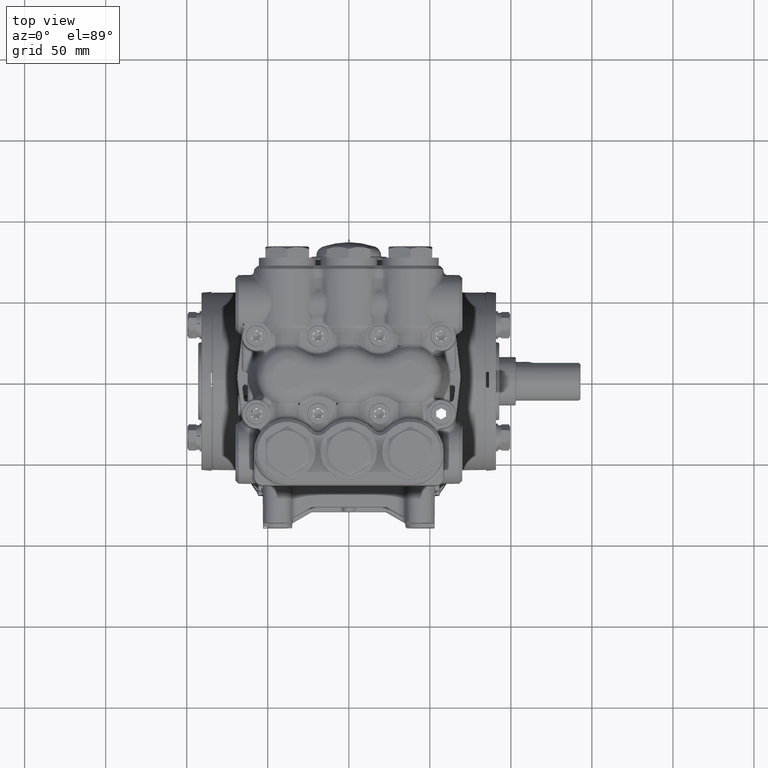
[diagram: clean part render]
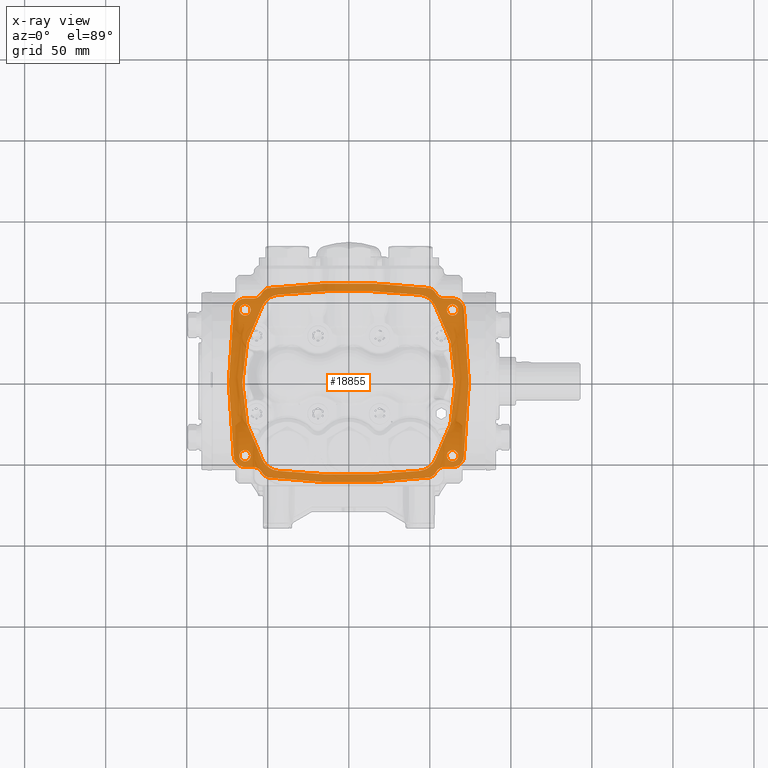
[diagram: x-ray — body ghosted, one internal face saturated and labeled with its STEP entity id]
A machine part, top view, then the same camera in x-ray: the body is ghosted and one INTERNAL B-rep face — a face not visible from any outside direction — is saturated and labeled: STEP entity #18855.
In plain terms, the highlighted planar face has unit normal (0, 0, 1).
Its self-contained STEP definition (entity closure, byte-faithful):
#327 = DIRECTION ( 'NONE',  ( 0.000000000000000000, 0.000000000000000000, 1.000000000000000000 ) ) ;
#591 = DIRECTION ( 'NONE',  ( 0.000000000000000000, 0.000000000000000000, 1.000000000000000000 ) ) ;
#661 = ORIENTED_EDGE ( 'NONE', *, *, #35545, .T. ) ;
#762 = EDGE_CURVE ( 'NONE', #31616, #80590, #42715, .T. ) ;
#945 = FACE_OUTER_BOUND ( 'NONE', #119704, .T. ) ;
#975 = VERTEX_POINT ( 'NONE', #20523 ) ;
#1279 = CARTESIAN_POINT ( 'NONE',  ( -2.390379968669624766, -1.775701195881771191E-15, -2.204724409448818534 ) ) ;
#1586 = VERTEX_POINT ( 'NONE', #52122 ) ;
#2205 = FACE_BOUND ( 'NONE', #65551, .T. ) ;
#2688 = VERTEX_POINT ( 'NONE', #46885 ) ;
#2864 = CIRCLE ( 'NONE', #73143, 0.2755905511811004294 ) ;
#3066 = DIRECTION ( 'NONE',  ( 0.06617949646860472879, -0.9978077341087118191, 0.000000000000000000 ) ) ;
#4001 = CARTESIAN_POINT ( 'NONE',  ( 2.105448202099413635, 1.855511626833944439, -2.204724409448818534 ) ) ;
#4003 = CIRCLE ( 'NONE', #60212, 0.1377952755905512972 ) ;
#4039 = ORIENTED_EDGE ( 'NONE', *, *, #31975, .T. ) ;
#4948 = CARTESIAN_POINT ( 'NONE',  ( 1.926447539938896503, -2.302985090464436446, -2.204724409448818534 ) ) ;
#4954 = CARTESIAN_POINT ( 'NONE',  ( 2.519685039370078705, 2.047244094488188892, -2.204724409448818534 ) ) ;
#5111 = CARTESIAN_POINT ( 'NONE',  ( -2.051083481286429588, 2.250180581757305731, -2.204724409448818534 ) ) ;
#5468 = DIRECTION ( 'NONE',  ( 0.1166157079181237149, -0.9931771124360221359, -0.000000000000000000 ) ) ;
#5473 = DIRECTION ( 'NONE',  ( 0.000000000000000000, 0.000000000000000000, 1.000000000000000000 ) ) ;
#5722 = EDGE_CURVE ( 'NONE', #50222, #88046, #98638, .T. ) ;
#5741 = CARTESIAN_POINT ( 'NONE',  ( -1.926447539938887177, 2.302985090464431561, -2.204724409448818534 ) ) ;
#5901 = CARTESIAN_POINT ( 'NONE',  ( 2.473811811613509271, -0.9774652049498783191, -2.204724409448818534 ) ) ;
#6343 = CARTESIAN_POINT ( 'NONE',  ( -1.964908401813795891, 2.295904897473645789, -2.204724409448818534 ) ) ;
#6465 = VECTOR ( 'NONE', #123300, 39.37007874015748143 ) ;
#6593 = LINE ( 'NONE', #73243, #10423 ) ;
#6999 = CARTESIAN_POINT ( 'NONE',  ( -2.912521781816622468, 0.01302745993476442377, -2.204724409448818534 ) ) ;
#7060 = CARTESIAN_POINT ( 'NONE',  ( 2.105457723328842956, 2.187922035967476031, -2.204724409448818534 ) ) ;
#7219 = EDGE_CURVE ( 'NONE', #30729, #31616, #32528, .T. ) ;
#7317 = CARTESIAN_POINT ( 'NONE',  ( 2.321998057958429840, 2.047244094488189781, -2.204724409448818534 ) ) ;
#7679 = VERTEX_POINT ( 'NONE', #59782 ) ;
#7815 = CARTESIAN_POINT ( 'NONE',  ( -2.794671422785861559, 1.789891987215757041, -2.204724409448818534 ) ) ;
#7860 = CARTESIAN_POINT ( 'NONE',  ( -1.992475042332175317, -2.285477522393467797, -2.204724409448818534 ) ) ;
#7894 = DIRECTION ( 'NONE',  ( -0.1166157079181237149, -0.9931771124360221359, -0.000000000000000000 ) ) ;
#8147 = DIRECTION ( 'NONE',  ( -1.000000000000000000, 0.000000000000000000, 0.000000000000000000 ) ) ;
#9101 = CARTESIAN_POINT ( 'NONE',  ( -2.065760577730856973, -2.237214070029445612, -2.204724409448818534 ) ) ;
#9177 = CARTESIAN_POINT ( 'NONE',  ( 2.473811811613508826, 0.9774652049498786521, -2.204724409448818534 ) ) ;
#9187 = DIRECTION ( 'NONE',  ( 0.1166157079181242145, -0.9931771124360219138, -0.000000000000000000 ) ) ;
#9229 = AXIS2_PLACEMENT_3D ( 'NONE', #85188, #105263, #10374 ) ;
#9326 = DIRECTION ( 'NONE',  ( -1.000000000000000000, 0.000000000000000000, 0.000000000000000000 ) ) ;
#9882 = ORIENTED_EDGE ( 'NONE', *, *, #111271, .T. ) ;
#9983 = CARTESIAN_POINT ( 'NONE',  ( -2.321998057958429840, 2.047244094488189781, -2.204724409448818534 ) ) ;
#10021 = VECTOR ( 'NONE', #123298, 39.37007874015748143 ) ;
#10264 = DIRECTION ( 'NONE',  ( -0.000000000000000000, -0.000000000000000000, -1.000000000000000000 ) ) ;
#10374 = DIRECTION ( 'NONE',  ( -1.000000000000000000, 0.000000000000000000, 0.000000000000000000 ) ) ;
#10423 = VECTOR ( 'NONE', #102750, 39.37007874015748143 ) ;
#10852 = CARTESIAN_POINT ( 'NONE',  ( 2.459168558816799521, -1.032215675239878339, -2.204724409448818534 ) ) ;
#11643 = FACE_BOUND ( 'NONE', #70121, .T. ) ;
#12417 = VERTEX_POINT ( 'NONE', #20226 ) ;
#12472 = DIRECTION ( 'NONE',  ( 1.000000000000000000, 0.000000000000000000, 0.000000000000000000 ) ) ;
#12632 = CARTESIAN_POINT ( 'NONE',  ( -2.278304506015867315, 0.9545093569344998974, -2.204724409448818534 ) ) ;
#12673 = DIRECTION ( 'NONE',  ( 0.000000000000000000, 0.000000000000000000, 1.000000000000000000 ) ) ;
#12870 = DIRECTION ( 'NONE',  ( 0.000000000000000000, 0.000000000000000000, 1.000000000000000000 ) ) ;
#13454 = EDGE_CURVE ( 'NONE', #2688, #30729, #29511, .T. ) ;
#13951 = CARTESIAN_POINT ( 'NONE',  ( -2.519685039370078705, -1.771653543307086576, -2.204724409448818534 ) ) ;
#14247 = CARTESIAN_POINT ( 'NONE',  ( -1.671374475377180868, -1.669016462901027786, -2.204724409448818534 ) ) ;
#14327 = EDGE_CURVE ( 'NONE', #91890, #57428, #72215, .T. ) ;
#14398 = CIRCLE ( 'NONE', #100716, 0.2755905511811004294 ) ;
#15005 = CARTESIAN_POINT ( 'NONE',  ( 1.937045517337301348, -2.301678835490549080, -2.204724409448818534 ) ) ;
#15161 = CARTESIAN_POINT ( 'NONE',  ( -1.992415732329600564, 2.285503073206394120, -2.204724409448818534 ) ) ;
#15872 = CARTESIAN_POINT ( 'NONE',  ( 2.059547584133961440, 2.243002979593314183, -2.204724409448818534 ) ) ;
#16229 = CARTESIAN_POINT ( 'NONE',  ( 1.968014526851309398, -2.294399713230200977, -2.204724409448818534 ) ) ;
#16490 = ORIENTED_EDGE ( 'NONE', *, *, #120437, .F. ) ;
#16512 = CIRCLE ( 'NONE', #86760, 0.1968503937007873017 ) ;
#16627 = DIRECTION ( 'NONE',  ( 1.000000000000000000, 0.000000000000000000, 0.000000000000000000 ) ) ;
#16962 = CIRCLE ( 'NONE', #103281, 0.2755905511811001518 ) ;
#17136 = LINE ( 'NONE', #46108, #87060 ) ;
#17374 = VERTEX_POINT ( 'NONE', #28298 ) ;
#17586 = CARTESIAN_POINT ( 'NONE',  ( 0.000000000000000000, 13.33661417322834630, -2.204724409448818534 ) ) ;
#17801 = VERTEX_POINT ( 'NONE', #114064 ) ;
#17902 = CARTESIAN_POINT ( 'NONE',  ( -1.964960090557481998, -2.295893926700739218, -2.204724409448819422 ) ) ;
#18226 = DIRECTION ( 'NONE',  ( -0.000000000000000000, -0.000000000000000000, -1.000000000000000000 ) ) ;
#18402 = CIRCLE ( 'NONE', #86593, 0.1377952755905512972 ) ;
#18526 = CARTESIAN_POINT ( 'NONE',  ( -2.107767962821018859, -2.183458564327182660, -2.204724409448819422 ) ) ;
#18855 = ADVANCED_FACE ( 'NONE', ( #29870, #945, #39957, #11643, #2205, #39320 ), #20434, .T. ) ;
#19736 = ORIENTED_EDGE ( 'NONE', *, *, #106312, .F. ) ;
#20226 = CARTESIAN_POINT ( 'NONE',  ( -2.459168558816799077, 1.032215675239877894, -2.204724409448818534 ) ) ;
#20287 = CARTESIAN_POINT ( 'NONE',  ( -2.321997991476540513, -2.283464566929134243, -2.204724409448818534 ) ) ;
#20434 = PLANE ( 'NONE',  #33615 ) ;
#20523 = CARTESIAN_POINT ( 'NONE',  ( -2.519685039370078705, -2.047244094488188892, -2.204724409448818534 ) ) ;
#20546 = CIRCLE ( 'NONE', #116872, 15.74803149606299257 ) ;
#20751 = EDGE_CURVE ( 'NONE', #72598, #30251, #71346, .T. ) ;
#20769 = DIRECTION ( 'NONE',  ( -1.000000000000000000, 0.000000000000000000, 0.000000000000000000 ) ) ;
#21065 = AXIS2_PLACEMENT_3D ( 'NONE', #13951, #33449, #41029 ) ;
#21236 = ORIENTED_EDGE ( 'NONE', *, *, #14327, .F. ) ;
#21807 = CARTESIAN_POINT ( 'NONE',  ( 2.105448202099417632, -1.855511626833935113, -2.204724409448818534 ) ) ;
#22349 = DIRECTION ( 'NONE',  ( -1.000000000000000000, 0.000000000000000000, 0.000000000000000000 ) ) ;
#22556 = AXIS2_PLACEMENT_3D ( 'NONE', #90802, #83223, #23569 ) ;
#23198 = CARTESIAN_POINT ( 'NONE',  ( 1.947548091809941040, -2.299678879626897654, -2.204724409448818534 ) ) ;
#23349 = CARTESIAN_POINT ( 'NONE',  ( -1.945975374407536540, 2.300576478307742256, -2.204724409448818534 ) ) ;
#23396 = VECTOR ( 'NONE', #102049, 39.37007874015748854 ) ;
#23569 = DIRECTION ( 'NONE',  ( -1.000000000000000000, 0.000000000000000000, 0.000000000000000000 ) ) ;
#23859 = VERTEX_POINT ( 'NONE', #47215 ) ;
#24443 = VERTEX_POINT ( 'NONE', #10852 ) ;
#24936 = CARTESIAN_POINT ( 'NONE',  ( -2.519685039370078705, -1.771653543307086576, -2.204724409448818534 ) ) ;
#25317 = CARTESIAN_POINT ( 'NONE',  ( 2.051508867286556459, 2.249868563675855526, -2.204724409448818534 ) ) ;
#25458 = DIRECTION ( 'NONE',  ( 0.000000000000000000, 0.000000000000000000, 1.000000000000000000 ) ) ;
#25780 = CARTESIAN_POINT ( 'NONE',  ( 0.000000000000000000, -13.32677165354330917, -2.204724409448818534 ) ) ;
#25926 = CARTESIAN_POINT ( 'NONE',  ( 2.081921949870710442, 2.220154571673986776, -2.204724409448818534 ) ) ;
#26065 = ORIENTED_EDGE ( 'NONE', *, *, #123177, .T. ) ;
#26449 = EDGE_CURVE ( 'NONE', #90150, #97087, #4003, .T. ) ;
#26486 = CARTESIAN_POINT ( 'NONE',  ( 1.926447539938896503, -2.302985090464436446, -2.204724409448818534 ) ) ;
#26710 = CARTESIAN_POINT ( 'NONE',  ( -2.043295570711283204, -2.256254348243912133, -2.204724409448818534 ) ) ;
#26790 = AXIS2_PLACEMENT_3D ( 'NONE', #41653, #71765, #62348 ) ;
#26887 = VERTEX_POINT ( 'NONE', #56458 ) ;
#27041 = CARTESIAN_POINT ( 'NONE',  ( 2.519685039370078705, -1.771653543307086576, -2.204724409448818534 ) ) ;
#27071 = AXIS2_PLACEMENT_3D ( 'NONE', #60664, #98956, #42427 ) ;
#27519 = CARTESIAN_POINT ( 'NONE',  ( 2.105448202099417632, -1.855511626833935335, -2.204724409448818534 ) ) ;
#27787 = CARTESIAN_POINT ( 'NONE',  ( -2.459168558816799077, 1.032215675239877894, -2.204724409448818534 ) ) ;
#28188 = DIRECTION ( 'NONE',  ( -0.000000000000000000, -0.000000000000000000, -1.000000000000000000 ) ) ;
#28245 = CARTESIAN_POINT ( 'NONE',  ( 2.390379968669624766, -1.775701195881771191E-15, -2.204724409448818534 ) ) ;
#28281 = CARTESIAN_POINT ( 'NONE',  ( -2.519685039370078705, 1.771653543307086576, -2.204724409448818534 ) ) ;
#28298 = CARTESIAN_POINT ( 'NONE',  ( -2.473811811613508826, 0.9774652049498786521, -2.204724409448818534 ) ) ;
#29288 = VERTEX_POINT ( 'NONE', #62447 ) ;
#29434 = EDGE_CURVE ( 'NONE', #58270, #105550, #75569, .T. ) ;
#29511 = LINE ( 'NONE', #49008, #117558 ) ;
#29674 = CARTESIAN_POINT ( 'NONE',  ( 8.058951581309577185E-15, -13.33661417322834630, -2.204724409448818534 ) ) ;
#29821 = CIRCLE ( 'NONE', #92014, 0.2362204724409448231 ) ;
#29870 = FACE_BOUND ( 'NONE', #80516, .T. ) ;
#30213 = CARTESIAN_POINT ( 'NONE',  ( 2.519685039370078705, 1.771653543307086576, -2.204724409448818534 ) ) ;
#30251 = VERTEX_POINT ( 'NONE', #26486 ) ;
#30362 = AXIS2_PLACEMENT_3D ( 'NONE', #47694, #124314, #86017 ) ;
#30458 = CARTESIAN_POINT ( 'NONE',  ( -1.926447539938887177, 2.302985090464431561, -2.204724409448818534 ) ) ;
#30535 = CARTESIAN_POINT ( 'NONE',  ( 2.112247612431775057, 2.174813668470048533, -2.204724409448818534 ) ) ;
#30670 = VERTEX_POINT ( 'NONE', #102416 ) ;
#30729 = VERTEX_POINT ( 'NONE', #116134 ) ;
#30778 = VERTEX_POINT ( 'NONE', #9983 ) ;
#31034 = CIRCLE ( 'NONE', #55095, 0.4724409448818900348 ) ;
#31116 = CARTESIAN_POINT ( 'NONE',  ( 2.244094488188975944, 0.9448818897637796255, -2.204724409448818534 ) ) ;
#31169 = CIRCLE ( 'NONE', #111430, 0.1968503937007875793 ) ;
#31181 = ORIENTED_EDGE ( 'NONE', *, *, #106393, .T. ) ;
#31214 = AXIS2_PLACEMENT_3D ( 'NONE', #20287, #10264, #117653 ) ;
#31249 = ORIENTED_EDGE ( 'NONE', *, *, #26449, .T. ) ;
#31357 = VERTEX_POINT ( 'NONE', #7815 ) ;
#31616 = VERTEX_POINT ( 'NONE', #61187 ) ;
#31902 = CIRCLE ( 'NONE', #50053, 15.57086614173228156 ) ;
#31975 = EDGE_CURVE ( 'NONE', #122387, #83297, #38540, .T. ) ;
#31994 = AXIS2_PLACEMENT_3D ( 'NONE', #105467, #28188, #9326 ) ;
#32052 = ORIENTED_EDGE ( 'NONE', *, *, #110568, .T. ) ;
#32082 = AXIS2_PLACEMENT_3D ( 'NONE', #87827, #96616, #67111 ) ;
#32108 = DIRECTION ( 'NONE',  ( -0.06617949646860472879, -0.9978077341087118191, 0.000000000000000000 ) ) ;
#32313 = VECTOR ( 'NONE', #32108, 39.37007874015748854 ) ;
#32439 = EDGE_CURVE ( 'NONE', #30670, #31357, #14398, .T. ) ;
#32528 = CIRCLE ( 'NONE', #22556, 0.1968503937007875793 ) ;
#32639 = CARTESIAN_POINT ( 'NONE',  ( 2.097493531556696489, -2.200271988601399276, -2.204724409448818534 ) ) ;
#32919 = CARTESIAN_POINT ( 'NONE',  ( 1.671374475377177315, 1.669016462901036890, -2.204724409448818534 ) ) ;
#33072 = B_SPLINE_CURVE_WITH_KNOTS ( 'NONE', 3,
 ( #5741, #23349, #6343, #15161, #101890, #33421, #64182, #44727, #5111, #93042, #71123, #120717, #72985, #63574, #34652, #119468 ),
 .UNSPECIFIED., .F., .F.,
 ( 4, 2, 2, 2, 2, 2, 2, 4 ),
 ( 0.000000000000000000, 0.2310239325060028381, 0.3465358987590042572, 0.4620478650120056763, 0.5775598312650070953, 0.6930717975180085144, 0.8085837637710099335, 0.9240957300240113526 ),
 .UNSPECIFIED. ) ;
#33353 = CARTESIAN_POINT ( 'NONE',  ( -1.671374475377177315, 1.669016462901036890, -2.204724409448818534 ) ) ;
#33421 = CARTESIAN_POINT ( 'NONE',  ( -2.018758174713479292, 2.272416613734317359, -2.204724409448818534 ) ) ;
#33426 = EDGE_CURVE ( 'NONE', #97202, #58270, #100893, .T. ) ;
#33449 = DIRECTION ( 'NONE',  ( 0.000000000000000000, 0.000000000000000000, 1.000000000000000000 ) ) ;
#33524 = CARTESIAN_POINT ( 'NONE',  ( 1.926447539938887177, 2.302985090464431561, -2.204724409448818534 ) ) ;
#33615 = AXIS2_PLACEMENT_3D ( 'NONE', #31116, #12870, #108397 ) ;
#34553 = VERTEX_POINT ( 'NONE', #121955 ) ;
#34652 = CARTESIAN_POINT ( 'NONE',  ( -2.107770823159133666, 2.183455536036899236, -2.204724409448818978 ) ) ;
#35147 = VERTEX_POINT ( 'NONE', #89509 ) ;
#35248 = EDGE_CURVE ( 'NONE', #84807, #23859, #17136, .T. ) ;
#35545 = EDGE_CURVE ( 'NONE', #24443, #35597, #75925, .T. ) ;
#35597 = VERTEX_POINT ( 'NONE', #21807 ) ;
#35827 = EDGE_CURVE ( 'NONE', #17374, #83064, #64494, .T. ) ;
#36785 = VERTEX_POINT ( 'NONE', #60671 ) ;
#36844 = LINE ( 'NONE', #104093, #69234 ) ;
#37262 = AXIS2_PLACEMENT_3D ( 'NONE', #116656, #78982, #99061 ) ;
#37861 = ORIENTED_EDGE ( 'NONE', *, *, #76370, .F. ) ;
#38013 = CARTESIAN_POINT ( 'NONE',  ( -1.926447539938896503, -2.302985090464436446, -2.204724409448818534 ) ) ;
#38540 = CIRCLE ( 'NONE', #46563, 0.1968503937007875793 ) ;
#39019 = ORIENTED_EDGE ( 'NONE', *, *, #46772, .T. ) ;
#39097 = EDGE_CURVE ( 'NONE', #35147, #975, #16962, .T. ) ;
#39205 = CARTESIAN_POINT ( 'NONE',  ( -2.585887274267266722, 0.02295584801537671818, -2.204724409448818534 ) ) ;
#39320 = FACE_BOUND ( 'NONE', #65886, .T. ) ;
#39957 = FACE_BOUND ( 'NONE', #87239, .T. ) ;
#40063 = CARTESIAN_POINT ( 'NONE',  ( 2.459168558816799077, 1.032215675239877894, -2.204724409448818534 ) ) ;
#40220 = EDGE_CURVE ( 'NONE', #107982, #91890, #107396, .T. ) ;
#40616 = DIRECTION ( 'NONE',  ( -0.000000000000000000, 0.000000000000000000, 1.000000000000000000 ) ) ;
#40961 = ORIENTED_EDGE ( 'NONE', *, *, #65753, .T. ) ;
#41029 = DIRECTION ( 'NONE',  ( 1.000000000000000000, 0.000000000000000000, 0.000000000000000000 ) ) ;
#41653 = CARTESIAN_POINT ( 'NONE',  ( 2.519685039370078705, 1.771653543307086576, -2.204724409448818534 ) ) ;
#41738 = ORIENTED_EDGE ( 'NONE', *, *, #111003, .F. ) ;
#42427 = DIRECTION ( 'NONE',  ( 1.000000000000000000, 0.000000000000000000, 0.000000000000000000 ) ) ;
#42715 = LINE ( 'NONE', #91684, #104225 ) ;
#43117 = AXIS2_PLACEMENT_3D ( 'NONE', #33353, #104290, #113060 ) ;
#43199 = DIRECTION ( 'NONE',  ( 1.000000000000000000, 0.000000000000000000, 0.000000000000000000 ) ) ;
#43910 = DIRECTION ( 'NONE',  ( -1.000000000000000000, 0.000000000000000000, 0.000000000000000000 ) ) ;
#44184 = ORIENTED_EDGE ( 'NONE', *, *, #108001, .T. ) ;
#44727 = CARTESIAN_POINT ( 'NONE',  ( -2.043278375530899638, 2.256267245084980999, -2.204724409448818534 ) ) ;
#44830 = CARTESIAN_POINT ( 'NONE',  ( 2.097499843759911720, 2.200257817618235467, -2.204724409448818534 ) ) ;
#45831 = VERTEX_POINT ( 'NONE', #53607 ) ;
#46069 = CARTESIAN_POINT ( 'NONE',  ( 2.034625601224818503, 2.262492316435812167, -2.204724409448818534 ) ) ;
#46085 = DIRECTION ( 'NONE',  ( 0.000000000000000000, 0.000000000000000000, 1.000000000000000000 ) ) ;
#46108 = CARTESIAN_POINT ( 'NONE',  ( 2.519685039370078705, -2.047244094488188892, -2.204724409448818534 ) ) ;
#46396 = ORIENTED_EDGE ( 'NONE', *, *, #61235, .T. ) ;
#46563 = AXIS2_PLACEMENT_3D ( 'NONE', #121579, #25458, #16627 ) ;
#46772 = EDGE_CURVE ( 'NONE', #83297, #35147, #97569, .T. ) ;
#46885 = CARTESIAN_POINT ( 'NONE',  ( 2.794671422785861559, 1.789891987215757041, -2.204724409448818534 ) ) ;
#47215 = CARTESIAN_POINT ( 'NONE',  ( 2.321997991476540513, -2.047244094488189337, -2.204724409448818534 ) ) ;
#47238 = ORIENTED_EDGE ( 'NONE', *, *, #13454, .F. ) ;
#47375 = ORIENTED_EDGE ( 'NONE', *, *, #86011, .F. ) ;
#47464 = CARTESIAN_POINT ( 'NONE',  ( -1.946008139956907801, -2.300572404468032683, -2.204724409448819422 ) ) ;
#47694 = CARTESIAN_POINT ( 'NONE',  ( -2.519685039370078705, -1.771653543307086576, -2.204724409448818534 ) ) ;
#48060 = CARTESIAN_POINT ( 'NONE',  ( -2.105448202099417632, -1.855511626833935113, -2.204724409448818534 ) ) ;
#48080 = CARTESIAN_POINT ( 'NONE',  ( -2.112248776625020419, -2.174810582275452209, -2.204724409448818534 ) ) ;
#48593 = DIRECTION ( 'NONE',  ( 0.06617949646860503410, -0.9978077341087118191, 0.000000000000000000 ) ) ;
#48781 = LINE ( 'NONE', #107166, #95557 ) ;
#49008 = CARTESIAN_POINT ( 'NONE',  ( 2.794671422785861559, 1.789891987215757041, -2.204724409448818534 ) ) ;
#49217 = CARTESIAN_POINT ( 'NONE',  ( -2.913385826771653697, 0.000000000000000000, -2.204724409448818534 ) ) ;
#50053 = AXIS2_PLACEMENT_3D ( 'NONE', #17586, #124389, #55975 ) ;
#50060 = DIRECTION ( 'NONE',  ( -1.000000000000000000, 0.000000000000000000, 0.000000000000000000 ) ) ;
#50222 = VERTEX_POINT ( 'NONE', #91286 ) ;
#50841 = DIRECTION ( 'NONE',  ( 0.000000000000000000, 0.000000000000000000, 1.000000000000000000 ) ) ;
#51015 = DIRECTION ( 'NONE',  ( 0.000000000000000000, 0.000000000000000000, 1.000000000000000000 ) ) ;
#51085 = CARTESIAN_POINT ( 'NONE',  ( -2.585887274267266722, -0.02295584801538049641, -2.204724409448818534 ) ) ;
#51431 = EDGE_CURVE ( 'NONE', #17801, #51609, #31169, .T. ) ;
#51609 = VERTEX_POINT ( 'NONE', #102892 ) ;
#52030 = VERTEX_POINT ( 'NONE', #113409 ) ;
#52122 = CARTESIAN_POINT ( 'NONE',  ( 2.381889763779527769, 1.771653543307086576, -2.204724409448818534 ) ) ;
#52392 = ORIENTED_EDGE ( 'NONE', *, *, #122986, .T. ) ;
#52504 = LINE ( 'NONE', #98986, #65174 ) ;
#52748 = CARTESIAN_POINT ( 'NONE',  ( 2.026201338119044681, -2.268792589333220366, -2.204724409448818534 ) ) ;
#53070 = LINE ( 'NONE', #5901, #23396 ) ;
#53607 = CARTESIAN_POINT ( 'NONE',  ( -2.321997991476540513, -2.047244094488189337, -2.204724409448818534 ) ) ;
#53621 = VERTEX_POINT ( 'NONE', #73766 ) ;
#53858 = DIRECTION ( 'NONE',  ( -0.000000000000000000, 0.000000000000000000, 1.000000000000000000 ) ) ;
#54178 = CARTESIAN_POINT ( 'NONE',  ( 2.657480314960630086, -1.771653543307086576, -2.204724409448818534 ) ) ;
#54601 = DIRECTION ( 'NONE',  ( -0.06617949646860503410, -0.9978077341087118191, 0.000000000000000000 ) ) ;
#54664 = EDGE_CURVE ( 'NONE', #80590, #84807, #103916, .T. ) ;
#54855 = CARTESIAN_POINT ( 'NONE',  ( 2.459168558816799077, 1.032215675239877894, -2.204724409448818534 ) ) ;
#55031 = CARTESIAN_POINT ( 'NONE',  ( -2.085606465693309985, -2.215695956575089998, -2.204724409448818534 ) ) ;
#55055 = VECTOR ( 'NONE', #85345, 39.37007874015747433 ) ;
#55095 = AXIS2_PLACEMENT_3D ( 'NONE', #14247, #101591, #43199 ) ;
#55551 = ORIENTED_EDGE ( 'NONE', *, *, #7219, .F. ) ;
#55975 = DIRECTION ( 'NONE',  ( 1.000000000000000000, 0.000000000000000000, 0.000000000000000000 ) ) ;
#56395 = CIRCLE ( 'NONE', #64363, 0.1377952755905512972 ) ;
#56458 = CARTESIAN_POINT ( 'NONE',  ( -2.112247612431775057, 2.174813668470048533, -2.204724409448818534 ) ) ;
#56541 = CARTESIAN_POINT ( 'NONE',  ( 2.519685039370078705, -1.771653543307086576, -2.204724409448818534 ) ) ;
#56605 = DIRECTION ( 'NONE',  ( -1.000000000000000000, 0.000000000000000000, 0.000000000000000000 ) ) ;
#56898 = CARTESIAN_POINT ( 'NONE',  ( -2.072662015751376430, -2.230320140195582557, -2.204724409448818090 ) ) ;
#57428 = VERTEX_POINT ( 'NONE', #97505 ) ;
#58270 = VERTEX_POINT ( 'NONE', #4001 ) ;
#58391 = B_SPLINE_CURVE_WITH_KNOTS ( 'NONE', 3,
 ( #48080, #18526, #86403, #122231, #55031, #56898, #9101, #112786, #26710, #122855, #95822, #104015, #7860, #17902, #47464, #38013 ),
 .UNSPECIFIED., .F., .F.,
 ( 4, 2, 2, 2, 2, 2, 2, 4 ),
 ( 0.07585387448540915900, 0.1913721401747325024, 0.3068904058640558596, 0.4224086715533791891, 0.5379269372427025742, 0.6534452029320259037, 0.7689634686213492332, 1.000000000000000000 ),
 .UNSPECIFIED. ) ;
#59218 = CIRCLE ( 'NONE', #27071, 0.2362204724409459056 ) ;
#59420 = CARTESIAN_POINT ( 'NONE',  ( -2.278304506015867759, -0.9545093569344998974, -2.204724409448818534 ) ) ;
#59782 = CARTESIAN_POINT ( 'NONE',  ( -2.473811811613509271, -0.9774652049498783191, -2.204724409448818534 ) ) ;
#59853 = ORIENTED_EDGE ( 'NONE', *, *, #81947, .T. ) ;
#60089 = CIRCLE ( 'NONE', #31994, 0.1968503937007873017 ) ;
#60212 = AXIS2_PLACEMENT_3D ( 'NONE', #27041, #18226, #56605 ) ;
#60664 = CARTESIAN_POINT ( 'NONE',  ( -2.321998057958429840, 2.283464566929136463, -2.204724409448818534 ) ) ;
#60671 = CARTESIAN_POINT ( 'NONE',  ( 1.723673024802287124, -2.138553797017198832, -2.204724409448818534 ) ) ;
#61187 = CARTESIAN_POINT ( 'NONE',  ( 2.912521781816622468, -0.01302745993476477245, -2.204724409448818534 ) ) ;
#61231 = CIRCLE ( 'NONE', #43117, 0.4724409448818899238 ) ;
#61235 = EDGE_CURVE ( 'NONE', #52030, #1586, #87007, .T. ) ;
#61514 = DIRECTION ( 'NONE',  ( -0.000000000000000000, -0.000000000000000000, -1.000000000000000000 ) ) ;
#61861 = EDGE_CURVE ( 'NONE', #7679, #111432, #77057, .T. ) ;
#62181 = CARTESIAN_POINT ( 'NONE',  ( 2.081860479042987322, -2.220228688266633110, -2.204724409448818534 ) ) ;
#62253 = ORIENTED_EDGE ( 'NONE', *, *, #96620, .T. ) ;
#62348 = DIRECTION ( 'NONE',  ( -1.000000000000000000, 0.000000000000000000, 0.000000000000000000 ) ) ;
#62447 = CARTESIAN_POINT ( 'NONE',  ( 2.473811811613509271, -0.9774652049498783191, -2.204724409448818534 ) ) ;
#63347 = CARTESIAN_POINT ( 'NONE',  ( -2.381889763779527769, 1.771653543307086576, -2.204724409448818534 ) ) ;
#63574 = CARTESIAN_POINT ( 'NONE',  ( -2.102768252731171739, 2.191798822278780534, -2.204724409448818534 ) ) ;
#64182 = CARTESIAN_POINT ( 'NONE',  ( -2.027127973212099032, 2.267376066214193298, -2.204724409448818534 ) ) ;
#64284 = ORIENTED_EDGE ( 'NONE', *, *, #20751, .F. ) ;
#64363 = AXIS2_PLACEMENT_3D ( 'NONE', #56541, #94839, #50060 ) ;
#64494 = LINE ( 'NONE', #75781, #111174 ) ;
#65020 = ORIENTED_EDGE ( 'NONE', *, *, #111074, .F. ) ;
#65174 = VECTOR ( 'NONE', #90794, 39.37007874015748143 ) ;
#65551 = EDGE_LOOP ( 'NONE', ( #101374, #46396 ) ) ;
#65753 = EDGE_CURVE ( 'NONE', #65843, #17801, #36844, .T. ) ;
#65843 = VERTEX_POINT ( 'NONE', #9177 ) ;
#65886 = EDGE_LOOP ( 'NONE', ( #44184, #31249 ) ) ;
#65965 = DIRECTION ( 'NONE',  ( 0.3947480969913208515, -0.9187893882287337943, -0.000000000000000000 ) ) ;
#66749 = LINE ( 'NONE', #27787, #6465 ) ;
#66785 = CARTESIAN_POINT ( 'NONE',  ( -1.723673024802278686, 2.138553797017210378, -2.204724409448818534 ) ) ;
#67111 = DIRECTION ( 'NONE',  ( -1.000000000000000000, 0.000000000000000000, 0.000000000000000000 ) ) ;
#67586 = DIRECTION ( 'NONE',  ( 1.000000000000000000, 0.000000000000000000, 0.000000000000000000 ) ) ;
#67813 = ORIENTED_EDGE ( 'NONE', *, *, #101294, .F. ) ;
#68351 = VECTOR ( 'NONE', #65965, 39.37007874015747433 ) ;
#69183 = CARTESIAN_POINT ( 'NONE',  ( -2.794671422785861559, 1.789891987215757041, -2.204724409448818534 ) ) ;
#69219 = DIRECTION ( 'NONE',  ( 1.000000000000000000, 0.000000000000000000, 0.000000000000000000 ) ) ;
#69234 = VECTOR ( 'NONE', #5468, 39.37007874015748143 ) ;
#69821 = LINE ( 'NONE', #69183, #32313 ) ;
#70121 = EDGE_LOOP ( 'NONE', ( #87746, #94181 ) ) ;
#70164 = CARTESIAN_POINT ( 'NONE',  ( 1.723673024802278686, 2.138553797017210378, -2.204724409448818534 ) ) ;
#70974 = CARTESIAN_POINT ( 'NONE',  ( 2.059529357906648706, -2.243015741114176009, -2.204724409448818534 ) ) ;
#71123 = CARTESIAN_POINT ( 'NONE',  ( -2.072663015178310086, 2.230318786648426421, -2.204724409448818534 ) ) ;
#71346 = B_SPLINE_CURVE_WITH_KNOTS ( 'NONE', 3,
 ( #92294, #102342, #32639, #62181, #109266, #70974, #100493, #52748, #111119, #120556, #16229, #23198, #15005, #4948 ),
 .UNSPECIFIED., .F., .F.,
 ( 4, 2, 2, 2, 2, 2, 4 ),
 ( 0.07546029968613417183, 0.2500000000000101030, 0.3750000000000086597, 0.5000000000000073275, 0.7500000000000044409, 0.8750000000000023315, 1.000000000000000000 ),
 .UNSPECIFIED. ) ;
#71765 = DIRECTION ( 'NONE',  ( -0.000000000000000000, -0.000000000000000000, -1.000000000000000000 ) ) ;
#71785 = EDGE_CURVE ( 'NONE', #23859, #72598, #29821, .T. ) ;
#71807 = ORIENTED_EDGE ( 'NONE', *, *, #29434, .T. ) ;
#71852 = CARTESIAN_POINT ( 'NONE',  ( 1.947672725584202791, 2.300368977664926096, -2.204724409448818534 ) ) ;
#72215 = LINE ( 'NONE', #4954, #123675 ) ;
#72598 = VERTEX_POINT ( 'NONE', #120746 ) ;
#72985 = CARTESIAN_POINT ( 'NONE',  ( -2.091710964925278304, 2.207887929263833815, -2.204724409448818534 ) ) ;
#73007 = ORIENTED_EDGE ( 'NONE', *, *, #61861, .F. ) ;
#73143 = AXIS2_PLACEMENT_3D ( 'NONE', #30213, #106245, #20769 ) ;
#73243 = CARTESIAN_POINT ( 'NONE',  ( -2.519685039370078705, -2.047244094488188892, -2.204724409448818534 ) ) ;
#73656 = CARTESIAN_POINT ( 'NONE',  ( 1.926447539938887177, 2.302985090464431561, -2.204724409448818534 ) ) ;
#73766 = CARTESIAN_POINT ( 'NONE',  ( -1.926447539938896503, -2.302985090464436446, -2.204724409448818534 ) ) ;
#73787 = AXIS2_PLACEMENT_3D ( 'NONE', #109449, #118862, #100045 ) ;
#74524 = AXIS2_PLACEMENT_3D ( 'NONE', #29674, #12673, #117599 ) ;
#75447 = DIRECTION ( 'NONE',  ( 1.000000000000000000, 0.000000000000000000, 0.000000000000000000 ) ) ;
#75569 = LINE ( 'NONE', #54855, #10021 ) ;
#75583 = EDGE_CURVE ( 'NONE', #105550, #65843, #60089, .T. ) ;
#75781 = CARTESIAN_POINT ( 'NONE',  ( -2.585887274267266722, 0.02295584801537669736, -2.204724409448818534 ) ) ;
#75925 = LINE ( 'NONE', #27519, #55055 ) ;
#76370 = EDGE_CURVE ( 'NONE', #83064, #115671, #82223, .T. ) ;
#77057 = CIRCLE ( 'NONE', #93079, 0.1968503937007873017 ) ;
#78982 = DIRECTION ( 'NONE',  ( 0.000000000000000000, 0.000000000000000000, 1.000000000000000000 ) ) ;
#79104 = VERTEX_POINT ( 'NONE', #48060 ) ;
#79219 = DIRECTION ( 'NONE',  ( 0.000000000000000000, 0.000000000000000000, 1.000000000000000000 ) ) ;
#79803 = EDGE_CURVE ( 'NONE', #102586, #53621, #58391, .T. ) ;
#80347 = CARTESIAN_POINT ( 'NONE',  ( -2.519685039370078705, 1.771653543307086576, -2.204724409448818534 ) ) ;
#80428 = CARTESIAN_POINT ( 'NONE',  ( -1.723673024802287124, -2.138553797017198832, -2.204724409448818534 ) ) ;
#80516 = EDGE_LOOP ( 'NONE', ( #19736, #88500, #71807, #83254, #40961, #100101, #26065, #52392, #661, #107809, #81259, #16490, #91999, #73007, #106404, #37861, #81761, #65020, #41738, #97975 ) ) ;
#80590 = VERTEX_POINT ( 'NONE', #115465 ) ;
#81119 = DIRECTION ( 'NONE',  ( 1.000000000000000000, 0.000000000000000000, 0.000000000000000000 ) ) ;
#81259 = ORIENTED_EDGE ( 'NONE', *, *, #102564, .F. ) ;
#81605 = ORIENTED_EDGE ( 'NONE', *, *, #40220, .F. ) ;
#81760 = DIRECTION ( 'NONE',  ( 0.000000000000000000, 0.000000000000000000, 1.000000000000000000 ) ) ;
#81761 = ORIENTED_EDGE ( 'NONE', *, *, #35827, .F. ) ;
#81947 = EDGE_CURVE ( 'NONE', #30778, #30670, #52504, .T. ) ;
#82223 = CIRCLE ( 'NONE', #122381, 0.1968503937007875793 ) ;
#82497 = ORIENTED_EDGE ( 'NONE', *, *, #85531, .T. ) ;
#82515 = CARTESIAN_POINT ( 'NONE',  ( 1.968101134613855718, 2.295089508575416826, -2.204724409448818534 ) ) ;
#83064 = VERTEX_POINT ( 'NONE', #39205 ) ;
#83116 = CARTESIAN_POINT ( 'NONE',  ( 2.112247612431775057, 2.174813668470048533, -2.204724409448818534 ) ) ;
#83223 = DIRECTION ( 'NONE',  ( -0.000000000000000000, -0.000000000000000000, -1.000000000000000000 ) ) ;
#83254 = ORIENTED_EDGE ( 'NONE', *, *, #75583, .T. ) ;
#83297 = VERTEX_POINT ( 'NONE', #84342 ) ;
#83327 = CIRCLE ( 'NONE', #21065, 0.1377952755905512972 ) ;
#83504 = B_SPLINE_CURVE_WITH_KNOTS ( 'NONE', 3,
 ( #33524, #71852, #82515, #122058, #101994, #103210, #46069, #25317, #15872, #91321, #25926, #44830, #7060, #83116 ),
 .UNSPECIFIED., .F., .F.,
 ( 4, 2, 2, 2, 2, 2, 4 ),
 ( 0.000000000000000000, 0.2499999999999938383, 0.3749999999999907851, 0.4999999999999876765, 0.6249999999999845679, 0.7499999999999815703, 0.9245799895658249890 ),
 .UNSPECIFIED. ) ;
#83589 = CARTESIAN_POINT ( 'NONE',  ( -2.459168558816799521, -1.032215675239878339, -2.204724409448818534 ) ) ;
#84342 = CARTESIAN_POINT ( 'NONE',  ( -2.912521781816622468, -0.01302745993476477245, -2.204724409448818534 ) ) ;
#84402 = DIRECTION ( 'NONE',  ( -1.000000000000000000, 0.000000000000000000, 0.000000000000000000 ) ) ;
#84611 = EDGE_CURVE ( 'NONE', #1586, #52030, #105695, .T. ) ;
#84807 = VERTEX_POINT ( 'NONE', #90697 ) ;
#85188 = CARTESIAN_POINT ( 'NONE',  ( 2.278304506015867759, -0.9545093569344998974, -2.204724409448818534 ) ) ;
#85345 = DIRECTION ( 'NONE',  ( -0.3947480969913208515, -0.9187893882287337943, 0.000000000000000000 ) ) ;
#85531 = EDGE_CURVE ( 'NONE', #53621, #30251, #113750, .T. ) ;
#85631 = AXIS2_PLACEMENT_3D ( 'NONE', #119260, #61514, #43910 ) ;
#86011 = EDGE_CURVE ( 'NONE', #118803, #34553, #119584, .T. ) ;
#86017 = DIRECTION ( 'NONE',  ( 1.000000000000000000, 0.000000000000000000, 0.000000000000000000 ) ) ;
#86373 = ORIENTED_EDGE ( 'NONE', *, *, #32439, .T. ) ;
#86403 = CARTESIAN_POINT ( 'NONE',  ( -2.102759439705908395, -2.191810266302693044, -2.204724409448818534 ) ) ;
#86593 = AXIS2_PLACEMENT_3D ( 'NONE', #80347, #50841, #12472 ) ;
#86760 = AXIS2_PLACEMENT_3D ( 'NONE', #12632, #51015, #69219 ) ;
#87007 = CIRCLE ( 'NONE', #26790, 0.1377952755905512972 ) ;
#87010 = EDGE_CURVE ( 'NONE', #115671, #7679, #48781, .T. ) ;
#87060 = VECTOR ( 'NONE', #84402, 39.37007874015748143 ) ;
#87239 = EDGE_LOOP ( 'NONE', ( #47375, #109086 ) ) ;
#87746 = ORIENTED_EDGE ( 'NONE', *, *, #121183, .F. ) ;
#87827 = CARTESIAN_POINT ( 'NONE',  ( 1.671374475377180868, -1.669016462901027786, -2.204724409448818534 ) ) ;
#88046 = VERTEX_POINT ( 'NONE', #102731 ) ;
#88224 = ORIENTED_EDGE ( 'NONE', *, *, #762, .F. ) ;
#88500 = ORIENTED_EDGE ( 'NONE', *, *, #33426, .T. ) ;
#88742 = DIRECTION ( 'NONE',  ( 1.000000000000000000, -4.145717599848920794E-15, -0.000000000000000000 ) ) ;
#89481 = AXIS2_PLACEMENT_3D ( 'NONE', #28281, #591, #75447 ) ;
#89509 = CARTESIAN_POINT ( 'NONE',  ( -2.794671422785863335, -1.789891987215757263, -2.204724409448818534 ) ) ;
#90150 = VERTEX_POINT ( 'NONE', #54178 ) ;
#90697 = CARTESIAN_POINT ( 'NONE',  ( 2.519685039370078705, -2.047244094488188892, -2.204724409448818534 ) ) ;
#90794 = DIRECTION ( 'NONE',  ( -1.000000000000000000, -4.145717599848920794E-15, -0.000000000000000000 ) ) ;
#90802 = CARTESIAN_POINT ( 'NONE',  ( 2.716102936519631861, 0.000000000000000000, -2.204724409448818534 ) ) ;
#91286 = CARTESIAN_POINT ( 'NONE',  ( -2.657480314960630086, -1.771653543307086576, -2.204724409448818534 ) ) ;
#91321 = CARTESIAN_POINT ( 'NONE',  ( 2.074787527569978973, 2.228120890154409839, -2.204724409448818534 ) ) ;
#91684 = CARTESIAN_POINT ( 'NONE',  ( 2.913385826771653697, 0.000000000000000000, -2.204724409448818534 ) ) ;
#91890 = VERTEX_POINT ( 'NONE', #7317 ) ;
#91999 = ORIENTED_EDGE ( 'NONE', *, *, #96807, .F. ) ;
#92014 = AXIS2_PLACEMENT_3D ( 'NONE', #122276, #53858, #93371 ) ;
#92294 = CARTESIAN_POINT ( 'NONE',  ( 2.112248776625020419, -2.174810582275452209, -2.204724409448818534 ) ) ;
#92301 = ORIENTED_EDGE ( 'NONE', *, *, #54664, .F. ) ;
#92525 = CIRCLE ( 'NONE', #74524, 15.57086614173229044 ) ;
#93042 = CARTESIAN_POINT ( 'NONE',  ( -2.065753745948165410, 2.237221580490685202, -2.204724409448818534 ) ) ;
#93079 = AXIS2_PLACEMENT_3D ( 'NONE', #59420, #327, #67586 ) ;
#93371 = DIRECTION ( 'NONE',  ( -1.000000000000000000, 0.000000000000000000, 0.000000000000000000 ) ) ;
#94181 = ORIENTED_EDGE ( 'NONE', *, *, #5722, .F. ) ;
#94839 = DIRECTION ( 'NONE',  ( -0.000000000000000000, -0.000000000000000000, -1.000000000000000000 ) ) ;
#95030 = DIRECTION ( 'NONE',  ( 1.000000000000000000, 0.000000000000000000, 0.000000000000000000 ) ) ;
#95491 = ORIENTED_EDGE ( 'NONE', *, *, #71785, .F. ) ;
#95557 = VECTOR ( 'NONE', #9187, 39.37007874015748854 ) ;
#95822 = CARTESIAN_POINT ( 'NONE',  ( -2.018812348361411768, -2.272385397199055301, -2.204724409448818090 ) ) ;
#96106 = DIRECTION ( 'NONE',  ( -0.000000000000000000, -0.000000000000000000, -1.000000000000000000 ) ) ;
#96616 = DIRECTION ( 'NONE',  ( -0.000000000000000000, -0.000000000000000000, -1.000000000000000000 ) ) ;
#96620 = EDGE_CURVE ( 'NONE', #31357, #122387, #69821, .T. ) ;
#96774 = ORIENTED_EDGE ( 'NONE', *, *, #122132, .T. ) ;
#96807 = EDGE_CURVE ( 'NONE', #111432, #79104, #103034, .T. ) ;
#97087 = VERTEX_POINT ( 'NONE', #114137 ) ;
#97202 = VERTEX_POINT ( 'NONE', #70164 ) ;
#97505 = CARTESIAN_POINT ( 'NONE',  ( 2.519685039370078705, 2.047244094488187116, -2.204724409448818534 ) ) ;
#97569 = LINE ( 'NONE', #49217, #98900 ) ;
#97975 = ORIENTED_EDGE ( 'NONE', *, *, #114553, .F. ) ;
#98638 = CIRCLE ( 'NONE', #30362, 0.1377952755905512972 ) ;
#98900 = VECTOR ( 'NONE', #48593, 39.37007874015748854 ) ;
#98956 = DIRECTION ( 'NONE',  ( -0.000000000000000000, -0.000000000000000000, -1.000000000000000000 ) ) ;
#98986 = CARTESIAN_POINT ( 'NONE',  ( -2.519685039370078705, 2.047244094488188892, -2.204724409448818534 ) ) ;
#99061 = DIRECTION ( 'NONE',  ( 1.000000000000000000, 0.000000000000000000, 0.000000000000000000 ) ) ;
#99507 = VERTEX_POINT ( 'NONE', #80428 ) ;
#99730 = ORIENTED_EDGE ( 'NONE', *, *, #39097, .T. ) ;
#100045 = DIRECTION ( 'NONE',  ( -1.000000000000000000, 0.000000000000000000, 0.000000000000000000 ) ) ;
#100101 = ORIENTED_EDGE ( 'NONE', *, *, #51431, .T. ) ;
#100158 = DIRECTION ( 'NONE',  ( -0.000000000000000000, -0.000000000000000000, -1.000000000000000000 ) ) ;
#100346 = CIRCLE ( 'NONE', #32082, 0.4724409448818900348 ) ;
#100493 = CARTESIAN_POINT ( 'NONE',  ( 2.051515496778307579, -2.249862914049246321, -2.204724409448818534 ) ) ;
#100716 = AXIS2_PLACEMENT_3D ( 'NONE', #112631, #46085, #95030 ) ;
#100893 = CIRCLE ( 'NONE', #106870, 0.4724409448818899238 ) ;
#101294 = EDGE_CURVE ( 'NONE', #117103, #107982, #83504, .T. ) ;
#101374 = ORIENTED_EDGE ( 'NONE', *, *, #84611, .T. ) ;
#101412 = AXIS2_PLACEMENT_3D ( 'NONE', #116599, #40616, #22349 ) ;
#101591 = DIRECTION ( 'NONE',  ( 0.000000000000000000, 0.000000000000000000, 1.000000000000000000 ) ) ;
#101890 = CARTESIAN_POINT ( 'NONE',  ( -2.001429383037801824, 2.281469982685601749, -2.204724409448818534 ) ) ;
#101994 = CARTESIAN_POINT ( 'NONE',  ( 2.007274174423733459, 2.278642989181102863, -2.204724409448818534 ) ) ;
#102049 = DIRECTION ( 'NONE',  ( -0.1166157079181242145, -0.9931771124360219138, 0.000000000000000000 ) ) ;
#102342 = CARTESIAN_POINT ( 'NONE',  ( 2.105460716397627330, -2.187916477834630502, -2.204724409448818534 ) ) ;
#102416 = CARTESIAN_POINT ( 'NONE',  ( -2.519685039370078705, 2.047244094488187116, -2.204724409448818534 ) ) ;
#102564 = EDGE_CURVE ( 'NONE', #99507, #36785, #31902, .T. ) ;
#102586 = VERTEX_POINT ( 'NONE', #113723 ) ;
#102731 = CARTESIAN_POINT ( 'NONE',  ( -2.381889763779527769, -1.771653543307086576, -2.204724409448818534 ) ) ;
#102750 = DIRECTION ( 'NONE',  ( 1.000000000000000000, 0.000000000000000000, 0.000000000000000000 ) ) ;
#102892 = CARTESIAN_POINT ( 'NONE',  ( 2.585887274267266722, -0.02295584801538049641, -2.204724409448818534 ) ) ;
#103034 = LINE ( 'NONE', #124342, #68351 ) ;
#103210 = CARTESIAN_POINT ( 'NONE',  ( 2.025780965123461730, 2.268250365708703864, -2.204724409448818534 ) ) ;
#103281 = AXIS2_PLACEMENT_3D ( 'NONE', #24936, #5473, #109781 ) ;
#103916 = CIRCLE ( 'NONE', #73787, 0.2755905511811001518 ) ;
#104015 = CARTESIAN_POINT ( 'NONE',  ( -2.001491565305099751, -2.281438930193015580, -2.204724409448818534 ) ) ;
#104093 = CARTESIAN_POINT ( 'NONE',  ( 2.585887274267266722, 0.02295584801537669736, -2.204724409448818534 ) ) ;
#104225 = VECTOR ( 'NONE', #54601, 39.37007874015748854 ) ;
#104290 = DIRECTION ( 'NONE',  ( 0.000000000000000000, 0.000000000000000000, 1.000000000000000000 ) ) ;
#104312 = EDGE_CURVE ( 'NONE', #35597, #36785, #100346, .T. ) ;
#105263 = DIRECTION ( 'NONE',  ( -0.000000000000000000, -0.000000000000000000, -1.000000000000000000 ) ) ;
#105467 = CARTESIAN_POINT ( 'NONE',  ( 2.278304506015867315, 0.9545093569344998974, -2.204724409448818534 ) ) ;
#105550 = VERTEX_POINT ( 'NONE', #40063 ) ;
#105695 = CIRCLE ( 'NONE', #85631, 0.1377952755905512972 ) ;
#105882 = CARTESIAN_POINT ( 'NONE',  ( -2.105448202099413635, 1.855511626833944439, -2.204724409448818534 ) ) ;
#106137 = VERTEX_POINT ( 'NONE', #66785 ) ;
#106245 = DIRECTION ( 'NONE',  ( -0.000000000000000000, -0.000000000000000000, -1.000000000000000000 ) ) ;
#106312 = EDGE_CURVE ( 'NONE', #97202, #106137, #92525, .T. ) ;
#106393 = EDGE_CURVE ( 'NONE', #119675, #26887, #33072, .T. ) ;
#106404 = ORIENTED_EDGE ( 'NONE', *, *, #87010, .F. ) ;
#106870 = AXIS2_PLACEMENT_3D ( 'NONE', #32919, #100158, #119607 ) ;
#107166 = CARTESIAN_POINT ( 'NONE',  ( -2.473811811613509271, -0.9774652049498783191, -2.204724409448818534 ) ) ;
#107396 = CIRCLE ( 'NONE', #101412, 0.2362204724409459056 ) ;
#107809 = ORIENTED_EDGE ( 'NONE', *, *, #104312, .T. ) ;
#107982 = VERTEX_POINT ( 'NONE', #30535 ) ;
#108001 = EDGE_CURVE ( 'NONE', #97087, #90150, #56395, .T. ) ;
#108397 = DIRECTION ( 'NONE',  ( 1.000000000000000000, 0.000000000000000000, -0.000000000000000000 ) ) ;
#109086 = ORIENTED_EDGE ( 'NONE', *, *, #109142, .F. ) ;
#109142 = EDGE_CURVE ( 'NONE', #34553, #118803, #18402, .T. ) ;
#109266 = CARTESIAN_POINT ( 'NONE',  ( 2.074689096808441491, -2.228222007745754851, -2.204724409448818534 ) ) ;
#109449 = CARTESIAN_POINT ( 'NONE',  ( 2.519685039370078705, -1.771653543307086576, -2.204724409448818534 ) ) ;
#109781 = DIRECTION ( 'NONE',  ( 1.000000000000000000, 0.000000000000000000, 0.000000000000000000 ) ) ;
#110470 = ORIENTED_EDGE ( 'NONE', *, *, #113685, .F. ) ;
#110568 = EDGE_CURVE ( 'NONE', #975, #45831, #6593, .T. ) ;
#111003 = EDGE_CURVE ( 'NONE', #122964, #12417, #66749, .T. ) ;
#111074 = EDGE_CURVE ( 'NONE', #12417, #17374, #16512, .T. ) ;
#111119 = CARTESIAN_POINT ( 'NONE',  ( 2.007377680706091461, -2.279347783918355130, -2.204724409448818534 ) ) ;
#111174 = VECTOR ( 'NONE', #7894, 39.37007874015748143 ) ;
#111271 = EDGE_CURVE ( 'NONE', #117103, #119675, #20546, .T. ) ;
#111430 = AXIS2_PLACEMENT_3D ( 'NONE', #28245, #96106, #8147 ) ;
#111432 = VERTEX_POINT ( 'NONE', #83589 ) ;
#112631 = CARTESIAN_POINT ( 'NONE',  ( -2.519685039370078705, 1.771653543307086576, -2.204724409448818534 ) ) ;
#112786 = CARTESIAN_POINT ( 'NONE',  ( -2.051099275590713145, -2.250165605744401720, -2.204724409448818090 ) ) ;
#113060 = DIRECTION ( 'NONE',  ( 1.000000000000000000, 0.000000000000000000, 0.000000000000000000 ) ) ;
#113409 = CARTESIAN_POINT ( 'NONE',  ( 2.657480314960630086, 1.771653543307086576, -2.204724409448818534 ) ) ;
#113446 = CIRCLE ( 'NONE', #31214, 0.2362204724409448231 ) ;
#113685 = EDGE_CURVE ( 'NONE', #57428, #2688, #2864, .T. ) ;
#113723 = CARTESIAN_POINT ( 'NONE',  ( -2.112248776625020419, -2.174810582275452209, -2.204724409448818534 ) ) ;
#113750 = CIRCLE ( 'NONE', #37262, 15.74803149606299790 ) ;
#114064 = CARTESIAN_POINT ( 'NONE',  ( 2.585887274267266722, 0.02295584801537671818, -2.204724409448818534 ) ) ;
#114137 = CARTESIAN_POINT ( 'NONE',  ( 2.381889763779527769, -1.771653543307086576, -2.204724409448818534 ) ) ;
#114553 = EDGE_CURVE ( 'NONE', #106137, #122964, #61231, .T. ) ;
#115465 = CARTESIAN_POINT ( 'NONE',  ( 2.794671422785863335, -1.789891987215757263, -2.204724409448818534 ) ) ;
#115671 = VERTEX_POINT ( 'NONE', #51085 ) ;
#116134 = CARTESIAN_POINT ( 'NONE',  ( 2.912521781816622468, 0.01302745993476442377, -2.204724409448818534 ) ) ;
#116599 = CARTESIAN_POINT ( 'NONE',  ( 2.321998057958429840, 2.283464566929136463, -2.204724409448818534 ) ) ;
#116656 = CARTESIAN_POINT ( 'NONE',  ( 0.000000000000000000, 13.32677165354330917, -2.204724409448818534 ) ) ;
#116872 = AXIS2_PLACEMENT_3D ( 'NONE', #25780, #81760, #81119 ) ;
#117103 = VERTEX_POINT ( 'NONE', #73656 ) ;
#117509 = DIRECTION ( 'NONE',  ( 1.000000000000000000, 0.000000000000000000, 0.000000000000000000 ) ) ;
#117558 = VECTOR ( 'NONE', #3066, 39.37007874015748854 ) ;
#117564 = CIRCLE ( 'NONE', #9229, 0.1968503937007873017 ) ;
#117599 = DIRECTION ( 'NONE',  ( 1.000000000000000000, 0.000000000000000000, 0.000000000000000000 ) ) ;
#117653 = DIRECTION ( 'NONE',  ( 1.000000000000000000, 0.000000000000000000, 0.000000000000000000 ) ) ;
#118455 = ORIENTED_EDGE ( 'NONE', *, *, #120840, .T. ) ;
#118803 = VERTEX_POINT ( 'NONE', #63347 ) ;
#118862 = DIRECTION ( 'NONE',  ( -0.000000000000000000, -0.000000000000000000, -1.000000000000000000 ) ) ;
#119260 = CARTESIAN_POINT ( 'NONE',  ( 2.519685039370078705, 1.771653543307086576, -2.204724409448818534 ) ) ;
#119468 = CARTESIAN_POINT ( 'NONE',  ( -2.112247612431775057, 2.174813668470048533, -2.204724409448818534 ) ) ;
#119584 = CIRCLE ( 'NONE', #89481, 0.1377952755905512972 ) ;
#119607 = DIRECTION ( 'NONE',  ( -1.000000000000000000, 0.000000000000000000, 0.000000000000000000 ) ) ;
#119662 = ORIENTED_EDGE ( 'NONE', *, *, #79803, .T. ) ;
#119675 = VERTEX_POINT ( 'NONE', #30458 ) ;
#119704 = EDGE_LOOP ( 'NONE', ( #62253, #4039, #39019, #99730, #32052, #96774, #119662, #82497, #64284, #95491, #122697, #92301, #88224, #55551, #47238, #110470, #21236, #81605, #67813, #9882, #31181, #118455, #59853, #86373 ) ) ;
#120437 = EDGE_CURVE ( 'NONE', #79104, #99507, #31034, .T. ) ;
#120556 = CARTESIAN_POINT ( 'NONE',  ( 1.978023073007961097, -2.291116967630120183, -2.204724409448818534 ) ) ;
#120717 = CARTESIAN_POINT ( 'NONE',  ( -2.085629827437152084, 2.215666612546011827, -2.204724409448818534 ) ) ;
#120746 = CARTESIAN_POINT ( 'NONE',  ( 2.112248776625020419, -2.174810582275452209, -2.204724409448818534 ) ) ;
#120840 = EDGE_CURVE ( 'NONE', #26887, #30778, #59218, .T. ) ;
#121183 = EDGE_CURVE ( 'NONE', #88046, #50222, #83327, .T. ) ;
#121579 = CARTESIAN_POINT ( 'NONE',  ( -2.716102936519631861, 0.000000000000000000, -2.204724409448818534 ) ) ;
#121955 = CARTESIAN_POINT ( 'NONE',  ( -2.657480314960630086, 1.771653543307086576, -2.204724409448818534 ) ) ;
#122058 = CARTESIAN_POINT ( 'NONE',  ( 1.997579578459973471, 2.283278877120834771, -2.204724409448818534 ) ) ;
#122132 = EDGE_CURVE ( 'NONE', #45831, #102586, #113446, .T. ) ;
#122231 = CARTESIAN_POINT ( 'NONE',  ( -2.091685809941850938, -2.207920506681933404, -2.204724409448818090 ) ) ;
#122276 = CARTESIAN_POINT ( 'NONE',  ( 2.321997991476540513, -2.283464566929134243, -2.204724409448818534 ) ) ;
#122381 = AXIS2_PLACEMENT_3D ( 'NONE', #1279, #79219, #117509 ) ;
#122387 = VERTEX_POINT ( 'NONE', #6999 ) ;
#122697 = ORIENTED_EDGE ( 'NONE', *, *, #35248, .F. ) ;
#122855 = CARTESIAN_POINT ( 'NONE',  ( -2.027173149442647482, -2.267348480809234346, -2.204724409448818534 ) ) ;
#122964 = VERTEX_POINT ( 'NONE', #105882 ) ;
#122986 = EDGE_CURVE ( 'NONE', #29288, #24443, #117564, .T. ) ;
#123177 = EDGE_CURVE ( 'NONE', #51609, #29288, #53070, .T. ) ;
#123298 = DIRECTION ( 'NONE',  ( 0.3947480969913202409, -0.9187893882287339054, -0.000000000000000000 ) ) ;
#123300 = DIRECTION ( 'NONE',  ( -0.3947480969913202409, -0.9187893882287339054, -0.000000000000000000 ) ) ;
#123675 = VECTOR ( 'NONE', #88742, 39.37007874015748143 ) ;
#124314 = DIRECTION ( 'NONE',  ( 0.000000000000000000, 0.000000000000000000, 1.000000000000000000 ) ) ;
#124342 = CARTESIAN_POINT ( 'NONE',  ( -2.105448202099417632, -1.855511626833935335, -2.204724409448818534 ) ) ;
#124389 = DIRECTION ( 'NONE',  ( 0.000000000000000000, 0.000000000000000000, 1.000000000000000000 ) ) ;